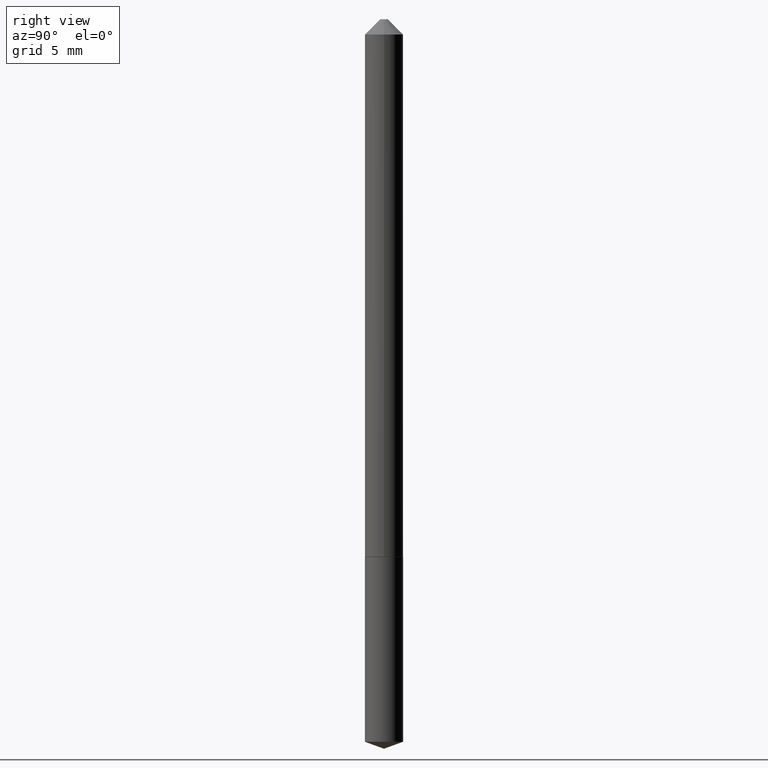
[diagram: clean part render]
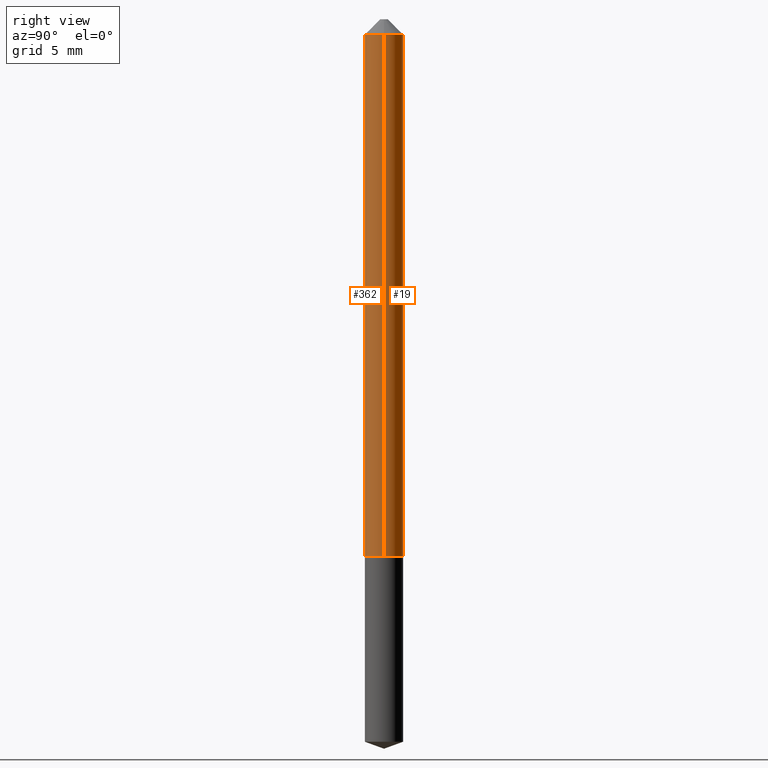
[diagram: same view with one multi-face feature highlighted, each face labeled with its STEP entity id]
A machine part, right view. The highlighted faces form ONE feature: a constant-radius fillet chain: 2 tangent blend faces with common blend radius 0.9995 mm. The faces share edges in the B-rep.
Their STEP definitions:
[1] entity #19 (Cylinder):
#12 = CARTESIAN_POINT ( 'NONE',  ( 7.642090019328602662E-31, -1.091087918388490267E-16, -0.03125000000000020817 ) ) ;
#19 = ADVANCED_FACE ( 'NONE', ( #246 ), #32, .T. ) ;
#22 = CIRCLE ( 'NONE', #67, 0.03935000000000012793 ) ;
#28 = AXIS2_PLACEMENT_3D ( 'NONE', #12, #89, #92 ) ;
#32 = CYLINDRICAL_SURFACE ( 'NONE', #231, 0.03935000000000007242 ) ;
#46 = VECTOR ( 'NONE', #330, 39.37007874015748143 ) ;
#50 = LINE ( 'NONE', #210, #46 ) ;
#67 = AXIS2_PLACEMENT_3D ( 'NONE', #185, #298, #368 ) ;
#85 = CARTESIAN_POINT ( 'NONE',  ( -0.03935000000000000997, -1.698587473033454879E-15, -0.03125000000000020817 ) ) ;
#86 = CIRCLE ( 'NONE', #28, 0.03935000000000000997 ) ;
#89 = DIRECTION ( 'NONE',  ( -2.445468806185136597E-29, 3.491481338843145583E-15, 1.000000000000000000 ) ) ;
#91 = VECTOR ( 'NONE', #384, 39.37007874015748143 ) ;
#92 = DIRECTION ( 'NONE',  ( 1.000000000000000000, -6.982962677686266711E-15, 0.000000000000000000 ) ) ;
#95 = CARTESIAN_POINT ( 'NONE',  ( 0.000000000000000000, 0.000000000000000000, 0.000000000000000000 ) ) ;
#112 = ORIENTED_EDGE ( 'NONE', *, *, #325, .F. ) ;
#113 = CARTESIAN_POINT ( 'NONE',  ( 0.03935000000000000997, -3.838883732058036724E-16, -0.03125000000000020817 ) ) ;
#120 = ORIENTED_EDGE ( 'NONE', *, *, #137, .F. ) ;
#137 = EDGE_CURVE ( 'NONE', #140, #243, #86, .T. ) ;
#139 = CARTESIAN_POINT ( 'NONE',  ( 0.03935000000000007242, -2.747795813669550648E-16, 1.918775561275704227E-30 ) ) ;
#140 = VERTEX_POINT ( 'NONE', #113 ) ;
#144 = EDGE_CURVE ( 'NONE', #153, #243, #50, .T. ) ;
#153 = VERTEX_POINT ( 'NONE', #333 ) ;
#185 = CARTESIAN_POINT ( 'NONE',  ( 2.694662077535402229E-29, -3.847263287271262604E-15, -1.101900000000000102 ) ) ;
#210 = CARTESIAN_POINT ( 'NONE',  ( -0.03935000000000007242, 2.795985665215999377E-16, -1.935600958015308795E-30 ) ) ;
#222 = ORIENTED_EDGE ( 'NONE', *, *, #380, .T. ) ;
#231 = AXIS2_PLACEMENT_3D ( 'NONE', #95, #339, #345 ) ;
#243 = VERTEX_POINT ( 'NONE', #85 ) ;
#246 = FACE_OUTER_BOUND ( 'NONE', #372, .T. ) ;
#298 = DIRECTION ( 'NONE',  ( -2.445468806185136597E-29, 3.491481338843145583E-15, 1.000000000000000000 ) ) ;
#325 = EDGE_CURVE ( 'NONE', #327, #140, #326, .T. ) ;
#326 = LINE ( 'NONE', #139, #91 ) ;
#327 = VERTEX_POINT ( 'NONE', #365 ) ;
#330 = DIRECTION ( 'NONE',  ( -2.445468806185136877E-29, 3.491481338843145188E-15, 1.000000000000000000 ) ) ;
#333 = CARTESIAN_POINT ( 'NONE',  ( -0.03935000000000012793, -3.567664720749661631E-15, -1.101900000000000102 ) ) ;
#339 = DIRECTION ( 'NONE',  ( -2.445468806185136597E-29, 3.491481338843145583E-15, 1.000000000000000000 ) ) ;
#345 = DIRECTION ( 'NONE',  ( 1.000000000000000000, -6.982962677686265922E-15, 4.876176775795935793E-29 ) ) ;
#365 = CARTESIAN_POINT ( 'NONE',  ( 0.03935000000000012793, -4.122042868638218310E-15, -1.101900000000000102 ) ) ;
#367 = ORIENTED_EDGE ( 'NONE', *, *, #144, .T. ) ;
#368 = DIRECTION ( 'NONE',  ( 1.000000000000000000, -6.982962677686272233E-15, 0.000000000000000000 ) ) ;
#372 = EDGE_LOOP ( 'NONE', ( #222, #367, #120, #112 ) ) ;
#380 = EDGE_CURVE ( 'NONE', #327, #153, #22, .T. ) ;
#384 = DIRECTION ( 'NONE',  ( -2.445468806185136877E-29, 3.491481338843145188E-15, 1.000000000000000000 ) ) ;
[2] entity #362 (Cylinder):
#20 = CARTESIAN_POINT ( 'NONE',  ( 2.694662077535402229E-29, -3.847263287271262604E-15, -1.101900000000000102 ) ) ;
#41 = AXIS2_PLACEMENT_3D ( 'NONE', #20, #379, #108 ) ;
#42 = AXIS2_PLACEMENT_3D ( 'NONE', #60, #306, #389 ) ;
#46 = VECTOR ( 'NONE', #330, 39.37007874015748143 ) ;
#50 = LINE ( 'NONE', #210, #46 ) ;
#60 = CARTESIAN_POINT ( 'NONE',  ( 7.642090019328602662E-31, -1.091087918388490267E-16, -0.03125000000000020817 ) ) ;
#65 = ORIENTED_EDGE ( 'NONE', *, *, #325, .T. ) ;
#85 = CARTESIAN_POINT ( 'NONE',  ( -0.03935000000000000997, -1.698587473033454879E-15, -0.03125000000000020817 ) ) ;
#91 = VECTOR ( 'NONE', #384, 39.37007874015748143 ) ;
#108 = DIRECTION ( 'NONE',  ( 1.000000000000000000, -6.982962677686272233E-15, 0.000000000000000000 ) ) ;
#113 = CARTESIAN_POINT ( 'NONE',  ( 0.03935000000000000997, -3.838883732058036724E-16, -0.03125000000000020817 ) ) ;
#139 = CARTESIAN_POINT ( 'NONE',  ( 0.03935000000000007242, -2.747795813669550648E-16, 1.918775561275704227E-30 ) ) ;
#140 = VERTEX_POINT ( 'NONE', #113 ) ;
#144 = EDGE_CURVE ( 'NONE', #153, #243, #50, .T. ) ;
#147 = DIRECTION ( 'NONE',  ( -2.445468806185136597E-29, 3.491481338843145583E-15, 1.000000000000000000 ) ) ;
#153 = VERTEX_POINT ( 'NONE', #333 ) ;
#175 = CARTESIAN_POINT ( 'NONE',  ( 0.000000000000000000, 0.000000000000000000, 0.000000000000000000 ) ) ;
#181 = FACE_OUTER_BOUND ( 'NONE', #276, .T. ) ;
#208 = ORIENTED_EDGE ( 'NONE', *, *, #144, .F. ) ;
#210 = CARTESIAN_POINT ( 'NONE',  ( -0.03935000000000007242, 2.795985665215999377E-16, -1.935600958015308795E-30 ) ) ;
#228 = ORIENTED_EDGE ( 'NONE', *, *, #348, .F. ) ;
#239 = DIRECTION ( 'NONE',  ( 1.000000000000000000, -6.982962677686265922E-15, 4.876176775795935793E-29 ) ) ;
#243 = VERTEX_POINT ( 'NONE', #85 ) ;
#258 = CIRCLE ( 'NONE', #42, 0.03935000000000000997 ) ;
#265 = ORIENTED_EDGE ( 'NONE', *, *, #317, .T. ) ;
#276 = EDGE_LOOP ( 'NONE', ( #208, #265, #65, #228 ) ) ;
#303 = CYLINDRICAL_SURFACE ( 'NONE', #311, 0.03935000000000007242 ) ;
#306 = DIRECTION ( 'NONE',  ( -2.445468806185136597E-29, 3.491481338843145583E-15, 1.000000000000000000 ) ) ;
#311 = AXIS2_PLACEMENT_3D ( 'NONE', #175, #147, #239 ) ;
#317 = EDGE_CURVE ( 'NONE', #153, #327, #381, .T. ) ;
#325 = EDGE_CURVE ( 'NONE', #327, #140, #326, .T. ) ;
#326 = LINE ( 'NONE', #139, #91 ) ;
#327 = VERTEX_POINT ( 'NONE', #365 ) ;
#330 = DIRECTION ( 'NONE',  ( -2.445468806185136877E-29, 3.491481338843145188E-15, 1.000000000000000000 ) ) ;
#333 = CARTESIAN_POINT ( 'NONE',  ( -0.03935000000000012793, -3.567664720749661631E-15, -1.101900000000000102 ) ) ;
#348 = EDGE_CURVE ( 'NONE', #243, #140, #258, .T. ) ;
#362 = ADVANCED_FACE ( 'NONE', ( #181 ), #303, .T. ) ;
#365 = CARTESIAN_POINT ( 'NONE',  ( 0.03935000000000012793, -4.122042868638218310E-15, -1.101900000000000102 ) ) ;
#379 = DIRECTION ( 'NONE',  ( -2.445468806185136597E-29, 3.491481338843145583E-15, 1.000000000000000000 ) ) ;
#381 = CIRCLE ( 'NONE', #41, 0.03935000000000012793 ) ;
#384 = DIRECTION ( 'NONE',  ( -2.445468806185136877E-29, 3.491481338843145188E-15, 1.000000000000000000 ) ) ;
#389 = DIRECTION ( 'NONE',  ( 1.000000000000000000, -6.982962677686266711E-15, 0.000000000000000000 ) ) ;